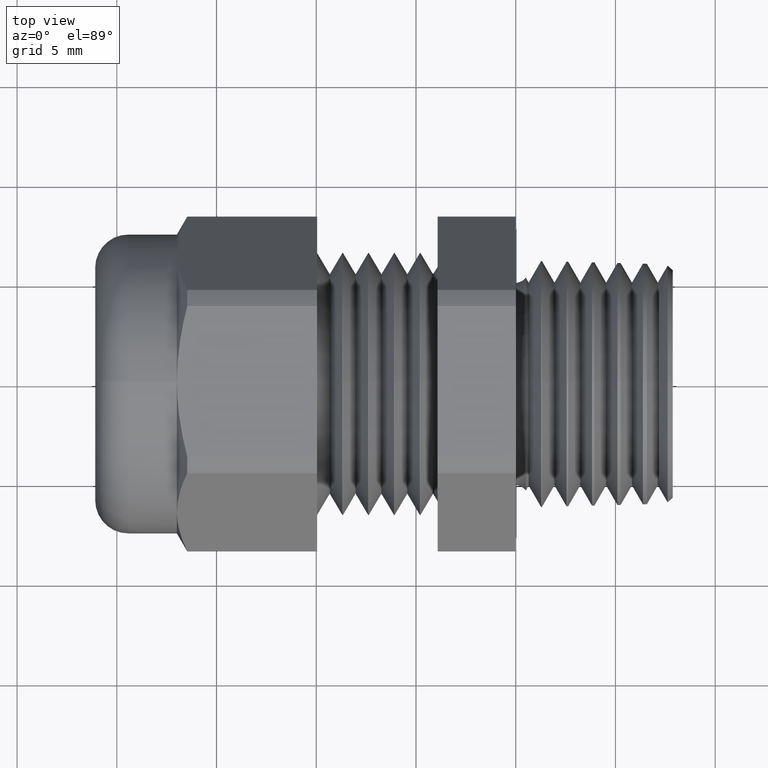
[diagram: clean part render]
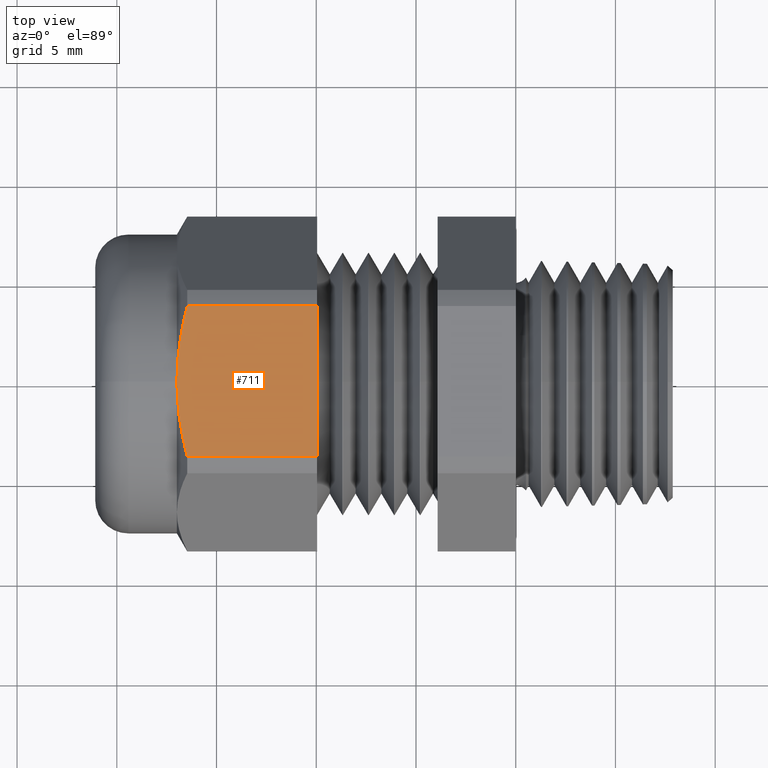
[diagram: same view with one face highlighted and labeled with its STEP entity id]
A machine part, top view. The second image highlights one B-rep face of the part: STEP entity #711.
In plain terms, the highlighted planar face has unit normal (0, 0, 1).
Its self-contained STEP definition (entity closure, byte-faithful):
#383 = VERTEX_POINT ( 'NONE', #1982 ) ;
#598 = EDGE_CURVE ( 'NONE', #678, #652, #2394, .T. ) ;
#640 = EDGE_CURVE ( 'NONE', #663, #1689, #2487, .T. ) ;
#651 = EDGE_LOOP ( 'NONE', ( #712, #713, #715, #717, #718 ) ) ;
#652 = VERTEX_POINT ( 'NONE', #2470 ) ;
#663 = VERTEX_POINT ( 'NONE', #2499 ) ;
#678 = VERTEX_POINT ( 'NONE', #2528 ) ;
#711 = ADVANCED_FACE ( 'NONE', ( #2609 ), #2608, .T. ) ;
#712 = ORIENTED_EDGE ( 'NONE', *, *, #598, .F. ) ;
#713 = ORIENTED_EDGE ( 'NONE', *, *, #714, .T. ) ;
#714 = EDGE_CURVE ( 'NONE', #678, #383, #2603, .T. ) ;
#715 = ORIENTED_EDGE ( 'NONE', *, *, #716, .T. ) ;
#716 = EDGE_CURVE ( 'NONE', #383, #663, #2657, .T. ) ;
#717 = ORIENTED_EDGE ( 'NONE', *, *, #640, .T. ) ;
#718 = ORIENTED_EDGE ( 'NONE', *, *, #719, .T. ) ;
#719 = EDGE_CURVE ( 'NONE', #1689, #652, #2656, .T. ) ;
#1689 = VERTEX_POINT ( 'NONE', #3328 ) ;
#1982 = CARTESIAN_POINT ( 'NONE',  ( -0.6687499999999999600, 0.0000000000000000000, 0.2949999999999998700 ) ) ;
#2391 = DIRECTION ( 'NONE',  ( 1.000000000000000000, 0.0000000000000000000, 0.0000000000000000000 ) ) ;
#2392 = VECTOR ( 'NONE', #2391, 39.37007874015748100 ) ;
#2393 = CARTESIAN_POINT ( 'NONE',  ( -1.612607445236302800, 0.1487923385124385000, 0.2949999999999999300 ) ) ;
#2394 = LINE ( 'NONE', #2393, #2392 ) ;
#2470 = CARTESIAN_POINT ( 'NONE',  ( -0.3920833333333332800, 0.1487923385124385000, 0.2949999999999999300 ) ) ;
#2484 = DIRECTION ( 'NONE',  ( 1.000000000000000000, 0.0000000000000000000, 0.0000000000000000000 ) ) ;
#2485 = VECTOR ( 'NONE', #2484, 39.37007874015748100 ) ;
#2486 = CARTESIAN_POINT ( 'NONE',  ( -1.612607445236302800, -0.1487923385124385300, 0.2949999999999998700 ) ) ;
#2487 = LINE ( 'NONE', #2486, #2485 ) ;
#2499 = CARTESIAN_POINT ( 'NONE',  ( -0.6483118004706871500, -0.1487923385124385600, 0.2949999999999999800 ) ) ;
#2528 = CARTESIAN_POINT ( 'NONE',  ( -0.6483118004706871500, 0.1487923385124385000, 0.2949999999999998700 ) ) ;
#2596 = CARTESIAN_POINT ( 'NONE',  ( -0.6682886392550061400, 0.02504818793965527700, 0.2949999999999999800 ) ) ;
#2597 = CARTESIAN_POINT ( 'NONE',  ( -0.6664539795682503700, 0.05017414996423327100, 0.2949999999999998700 ) ) ;
#2598 = CARTESIAN_POINT ( 'NONE',  ( -0.6650738706461848400, 0.06279360639189929300, 0.2949999999999998700 ) ) ;
#2599 = CARTESIAN_POINT ( 'NONE',  ( -0.6597381713101825300, 0.1001808597390347500, 0.2949999999999999300 ) ) ;
#2600 = CARTESIAN_POINT ( 'NONE',  ( -0.6545892602780014600, 0.1246486267720973800, 0.2949999999999999800 ) ) ;
#2601 = CARTESIAN_POINT ( 'NONE',  ( -0.6483118004706871500, 0.1487923385124385000, 0.2949999999999998700 ) ) ;
#2602 = CARTESIAN_POINT ( 'NONE',  ( -0.3920833333333332800, 0.2596999999999999900, 0.2949999999999998700 ) ) ;
#2603 = B_SPLINE_CURVE_WITH_KNOTS ( 'NONE', 3,
 ( #2601, #2600, #2599, #2598, #2597, #2596, #2659, #2658 ),
 .UNSPECIFIED., .F., .F.,
 ( 4, 2, 2, 4 ),
 ( 0.004185498858991982700, 0.006085812393149479500, 0.007035969160228226100, 0.007986125927306974400 ),
 .UNSPECIFIED. ) ;
#2604 = DIRECTION ( 'NONE',  ( 1.000000000000000000, 0.0000000000000000000, 0.0000000000000000000 ) ) ;
#2605 = DIRECTION ( 'NONE',  ( 0.0000000000000000000, 0.0000000000000000000, 1.000000000000000000 ) ) ;
#2606 = CARTESIAN_POINT ( 'NONE',  ( -1.612607445236302800, 0.1487923385124385300, 0.2949999999999998700 ) ) ;
#2607 = AXIS2_PLACEMENT_3D ( 'NONE', #2606, #2605, #2604 ) ;
#2608 = PLANE ( 'NONE',  #2607 ) ;
#2609 = FACE_OUTER_BOUND ( 'NONE', #651, .T. ) ;
#2648 = DIRECTION ( 'NONE',  ( 0.0000000000000000000, 1.000000000000000000, 0.0000000000000000000 ) ) ;
#2649 = VECTOR ( 'NONE', #2648, 39.37007874015748100 ) ;
#2650 = CARTESIAN_POINT ( 'NONE',  ( -0.6483118004706871500, -0.1487923385124385600, 0.2949999999999999800 ) ) ;
#2651 = CARTESIAN_POINT ( 'NONE',  ( -0.6546358786678908600, -0.1244693279789880800, 0.2949999999999999300 ) ) ;
#2652 = CARTESIAN_POINT ( 'NONE',  ( -0.6598382952289477700, -0.09962235669522293000, 0.2949999999999998700 ) ) ;
#2653 = CARTESIAN_POINT ( 'NONE',  ( -0.6668849065099121700, -0.04995790088282998200, 0.2949999999999999800 ) ) ;
#2654 = CARTESIAN_POINT ( 'NONE',  ( -0.6687499999999999600, -0.02503176339243232100, 0.2949999999999998200 ) ) ;
#2655 = CARTESIAN_POINT ( 'NONE',  ( -0.6687499999999999600, 0.0000000000000000000, 0.2949999999999998700 ) ) ;
#2656 = LINE ( 'NONE', #2602, #2649 ) ;
#2657 = B_SPLINE_CURVE_WITH_KNOTS ( 'NONE', 3,
 ( #2655, #2654, #2653, #2652, #2651, #2650 ),
 .UNSPECIFIED., .F., .F.,
 ( 4, 2, 4 ),
 ( 0.007986125927306974400, 0.009887176414941700000, 0.01178822690257642600 ),
 .UNSPECIFIED. ) ;
#2658 = CARTESIAN_POINT ( 'NONE',  ( -0.6687499999999999600, 0.0000000000000000000, 0.2949999999999998700 ) ) ;
#2659 = CARTESIAN_POINT ( 'NONE',  ( -0.6687499999999998400, 0.01251102984057289600, 0.2949999999999999800 ) ) ;
#3328 = CARTESIAN_POINT ( 'NONE',  ( -0.3920833333333332800, -0.1487923385124385600, 0.2949999999999999800 ) ) ;